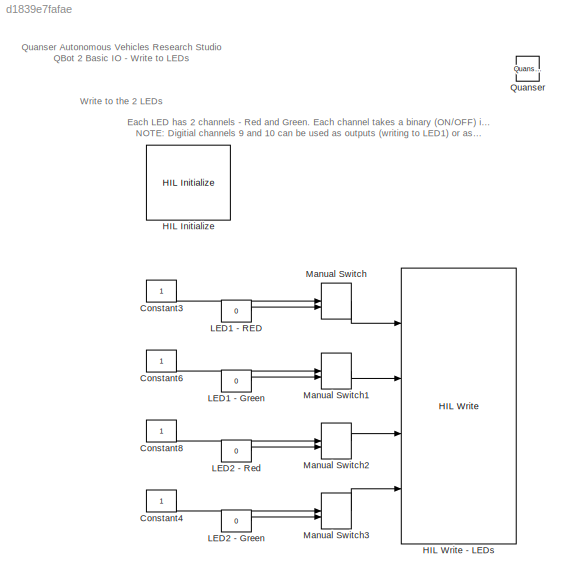
MODEL slx_d1839e7fafae
KIND model
CONFIG AbsTol = auto
CONFIG EnableMultiTasking = on
CONFIG FixedStep = 0.001
CONFIG InitFcn = set_param(gcs, 'ZoomFactor','FitSystem')
CONFIG MaxStep = auto
CONFIG MinStep = auto
CONFIG RelTol = 1e-3
CONFIG SampleTimeConstraint = Unconstrained
CONFIG Solver = ode2
CONFIG SolverName = ode2
CONFIG StartTime = 0.0
CONFIG StopTime = inf
WORKSPACE source: MAT-file member
WORKSPACE target_system = 1
BLOCK [Constant] Constant3
BLOCK [Constant] Constant4
BLOCK [Constant] Constant6
BLOCK [Constant] Constant8
BLOCK [Reference] HIL Initialize  REF=quarc_library/Data Acquisition/Generic/Configuration/HIL Initialize
  AttributesFormatString = %<object_name> (%<board_type>-%<board_number>)
  Ports = []
  Priority = -99
  SourceBlock = quarc_library/Data Acquisition/Generic/Configuration/HIL Initialize
  SourceProductName = QUARC Targets
  SourceType = HIL Initialize
  UserDataPersistent = on
BLOCK [Reference] HIL Write - LEDs  REF=quarc_library/Data Acquisition/Generic/Immediate I//O/HIL Write
  AttributesFormatString = (%<object_name>)
  Ports = [4]
  SourceBlock = quarc_library/Data Acquisition/Generic/Immediate I//O/HIL Write
  SourceProductName = QUARC Targets
  SourceType = HIL Write
  UserDataPersistent = on
BLOCK [Constant] LED1 - Green
  Value = 0
BLOCK [Constant] LED1 - RED
  Value = 0
BLOCK [Constant] LED2 - Green
  Value = 0
BLOCK [Constant] LED2 - Red
  Value = 0
BLOCK [ManualSwitch] Manual Switch
  CurrentSetting = 0
BLOCK [ManualSwitch] Manual Switch1
  CurrentSetting = 0
BLOCK [ManualSwitch] Manual Switch2
  CurrentSetting = 0
BLOCK [ManualSwitch] Manual Switch3
  CurrentSetting = 0
BLOCK [Reference] Quanser  REF=quarc_library/Logos/Quanser
  Ports = []
  SourceBlock = quarc_library/Logos/Quanser
  SourceProductName = QUARC Targets
  SourceType = Powered by Quanser
ANNOTATION (root): Quanser Autonomous Vehicles Research Studio QBot 2 Basic IO - Write to LEDs
ANNOTATION (root): Each LED has 2 channels - Red and Green. Each channel takes a binary (ON/OFF) input and hence, 4 values are possible for each LED (Off, Red, Green, Yellow). NOTE: Digitial channels 9 and 10 can be used as outputs (writing to LED1) or as inputs (reading from bumpers), but the use case is mutually exclusive. Thus, it is not possible to both write to LED1 and read from the bumpers simultaneously. Con...<+128ch>
ANNOTATION (root): Write to the 2 LEDs
LINE Constant3:1 -> Manual Switch:1
LINE Constant4:1 -> Manual Switch3:1
LINE Constant6:1 -> Manual Switch1:1
LINE Constant8:1 -> Manual Switch2:1
LINE LED1 - Green:1 -> Manual Switch1:2
LINE LED1 - RED:1 -> Manual Switch:2
LINE LED2 - Green:1 -> Manual Switch3:2
LINE LED2 - Red:1 -> Manual Switch2:2
LINE Manual Switch1:1 -> HIL Write - LEDs:2
LINE Manual Switch2:1 -> HIL Write - LEDs:3
LINE Manual Switch3:1 -> HIL Write - LEDs:4
LINE Manual Switch:1 -> HIL Write - LEDs:1
